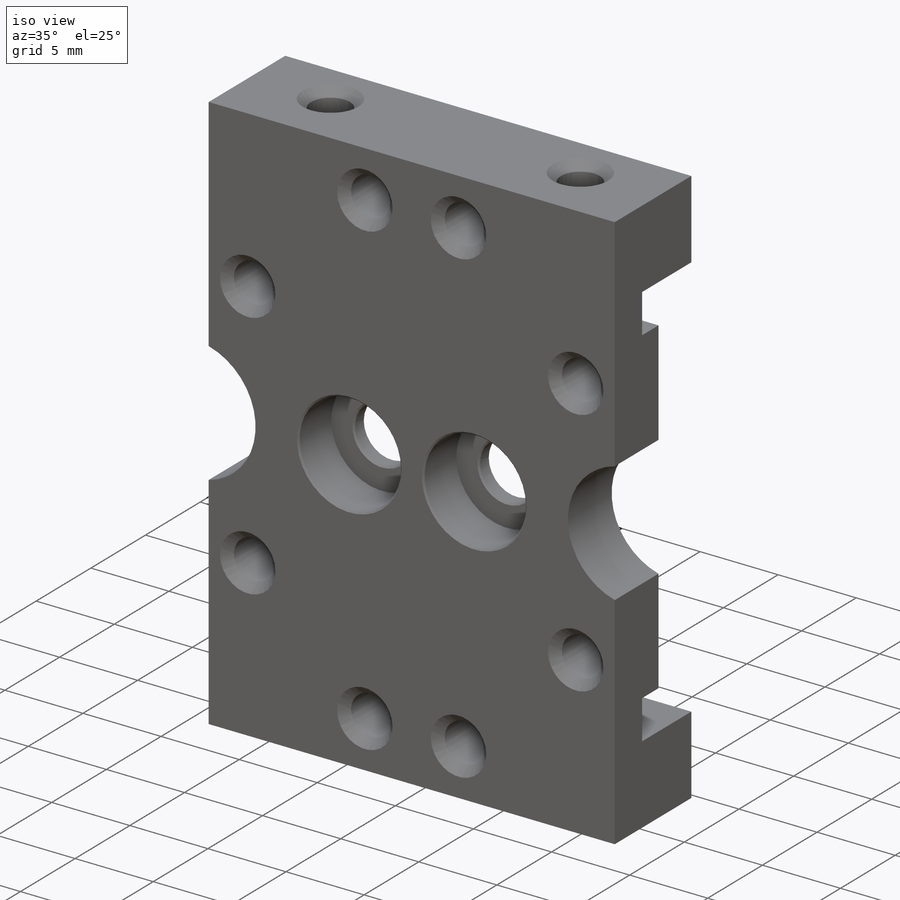
[diagram: iso view]
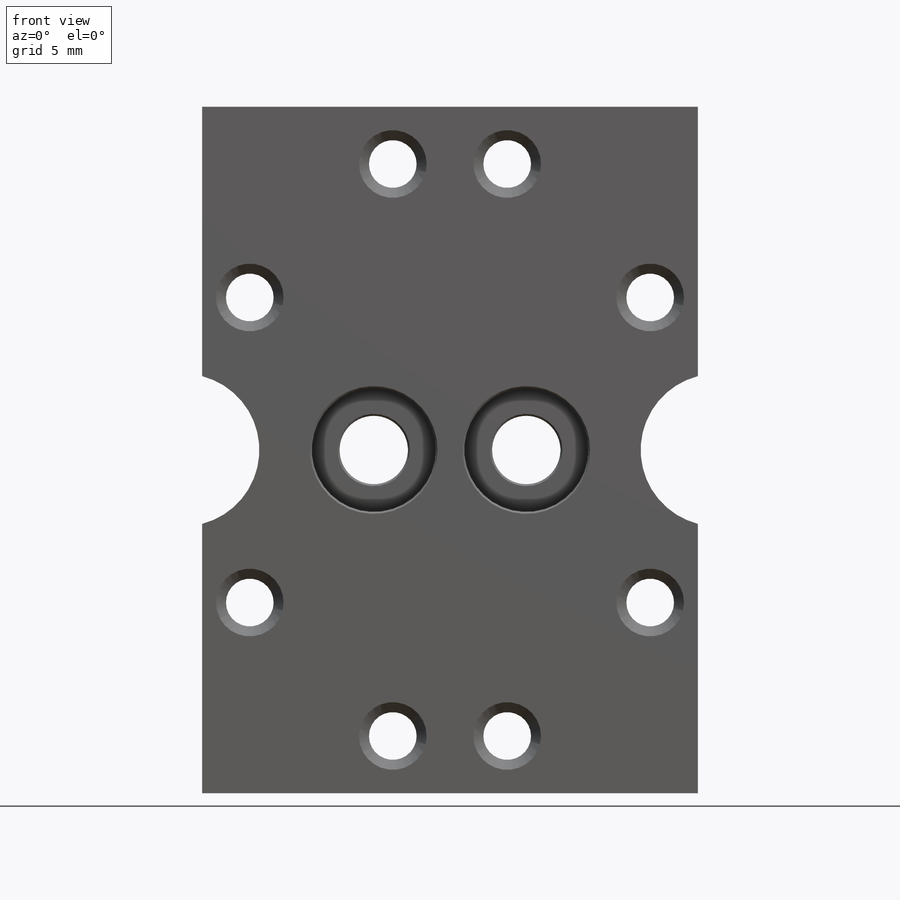
[diagram: front view]
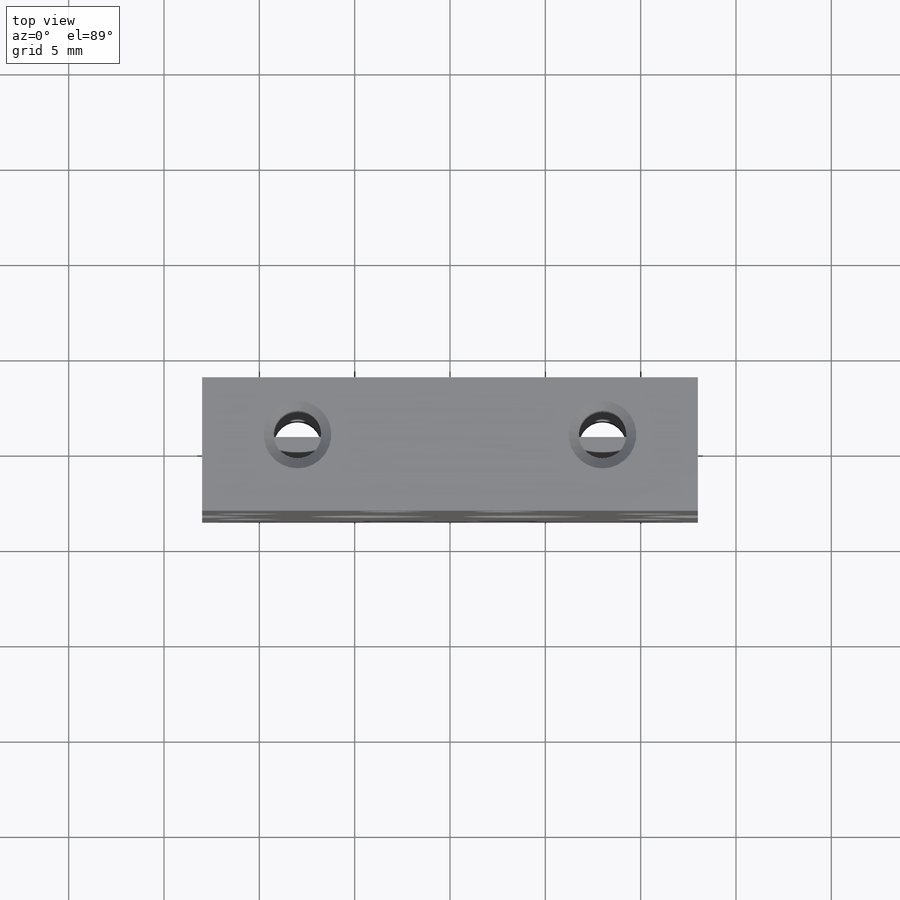
[diagram: top view]
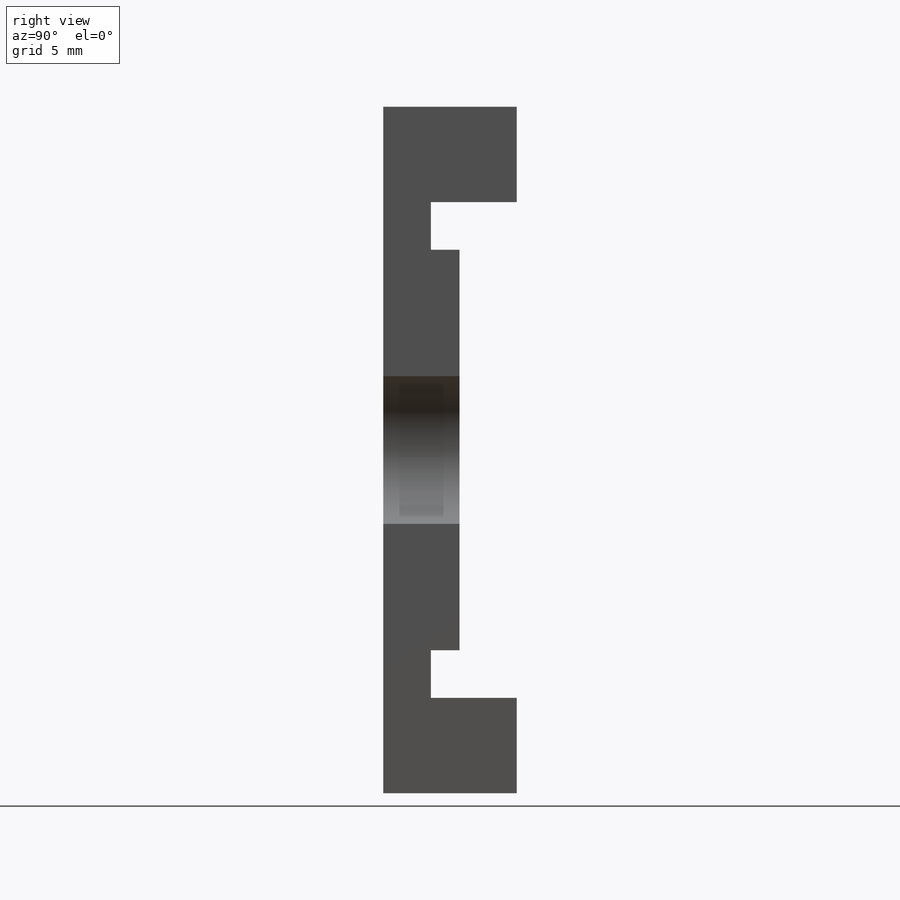
[diagram: right view]
SOLIDWORKS PART (.sldprt)
format: sldprt  version: not decoded by parser v0  size: 467,456 bytes
history: native  units: mm
features: thread x12, sketch x11, hole x4, plane x3, cut_extrude x2, material x1, extrude x1 (+14 scaffold rows collapsed)
feature tree (48):
  scaffold x14  (default folders/planes/origin — collapsed)
  material  "2024-T4"
  plane  "Спереди"
  plane  "Сверху"
  plane  "Справа"
  sketch  "Эскиз1"  dims[D1=26.0mm D2=7.0mm]
  extrude  "Бобышка-Вытянуть1"  Depth=36mm
  sketch  "Эскиз2"  dims[c1.D1=4.0mm c1.D2=26.0mm c1.D3=5.0mm c2.D1=4.0mm c2.D4=2.5mm c2.D5=2.5mm c2.D2=5.0mm]
  cut_extrude  "Вырез-Вытянуть1"  [1 undecoded]
  hole  "Отверстие обработанное метчиком M31"  [1 undecoded]
  sketch  "Эскиз4"  dims[c1.D1=9.0mm c1.D2=32.0mm c1.D3=3.0mm c2.D2=3.0mm c2.D4=7.0mm c2.D1=3.0mm c3.D4=6.0mm c3.D5=21.0mm c3.D6=16.0mm c3.D7=7.0mm c3.D8=10.5mm]
  sketch  "Эскиз3"  dims[hole-wizard template sketch: 47 standard entries collapsed; hole parameters kept: c15.Глубина проходного сверла=7.0mm c15.Диаметр передней зенковки=3.55mm c15.D4=~3.666174mm c15.Угол передней зенковки=90.0deg c15.Диаметр задней зенковки=3.55mm c15.D6=~9.919017mm c15.Угол задней зенковки=90.0deg]
  thread  "Отверстие резьбы1"  Diameter=3mm  [1 undecoded]
  thread  "Отверстие резьбы2"  Diameter=3mm  [1 undecoded]
  thread  "Отверстие резьбы3"  Diameter=3mm  [1 undecoded]
  thread  "Отверстие резьбы4"  Diameter=3mm  [1 undecoded]
  thread  "Отверстие резьбы11"  Diameter=3mm  [1 undecoded]
  thread  "Отверстие резьбы12"  Diameter=3mm  [1 undecoded]
  thread  "Отверстие резьбы15"  Diameter=3mm  [1 undecoded]
  thread  "Отверстие резьбы16"  Diameter=3mm  [1 undecoded]
  hole  "Отверстие обработанное метчиком M32"  [1 undecoded]
  sketch  "Эскиз6"  dims[c1.D1=3.0mm c1.D2=3.0mm c1.D3=3.0mm c2.D2=16.0mm c2.D3=8.0mm]
  thread  "Отверстие резьбы9"  Diameter=3mm  [1 undecoded]
  thread  "Отверстие резьбы10"  Diameter=3mm  [1 undecoded]
  sketch  "Эскиз5"  dims[hole-wizard template sketch: 55 standard entries collapsed; hole parameters kept: c17.Глубина проходного сверла=5.0mm c17.Диаметр передней зенковки=3.55mm c17.D4=~3.666174mm c17.Угол передней зенковки=90.0deg]
  hole  "Отверстие обработанное метчиком M33"  [1 undecoded]
  sketch  "Эскиз8"
  thread  "Отверстие резьбы7"  Diameter=3mm  [1 undecoded]
  thread  "Отверстие резьбы8"  Diameter=3mm  [1 undecoded]
  sketch  "Эскиз7"  dims[hole-wizard template sketch: 55 standard entries collapsed; hole parameters kept: c17.Глубина проходного сверла=5.0mm c17.Диаметр передней зенковки=3.55mm c17.D4=~3.666174mm c17.Угол передней зенковки=90.0deg]
  sketch  "Эскиз10"  dims[D1=4.0mm D2=20.0mm]
  cut_extrude  "Вырез-Вытянуть4"  [1 undecoded]
  hole  "Цековка для винта с внутренним шестигранником M31"  [1 undecoded]
  sketch  "Эскиз12"  dims[D1=15.0mm D2=8.0mm D3=9.0mm]
  sketch  "Эскиз11"  dims[hole-wizard template sketch: 28 standard entries collapsed; hole parameters kept: c8.Диаметр сквозного отверстия=4.8mm c8.Глубина сквозного отверстия=4.0mm c8.Диаметр цековки=6.5mm c8.Глубина цековки=3.0mm c8.Диаметр передней зенковки=6.7mm c8.D6=~4.444873mm c8.Угол передней зенковки=90.0deg c8.Диаметр средней зенковки=5.0mm c8.D8=~4.444873mm c8.Угол средней зенковки=90.0deg c8.Диаметр задней зенковки=5.0mm c8.D10=~8.980256mm c8.Угол задней зенковки=90.0deg]
decode coverage: 23 of 30 modeling features carry decoded parameters
note: ~ marks probable driven/reference dimensions
note: 18 parameter values undecoded
summary: no parameter record found for 6 features
note: suppression state not decoded; provenance and decode notes live in map.json
